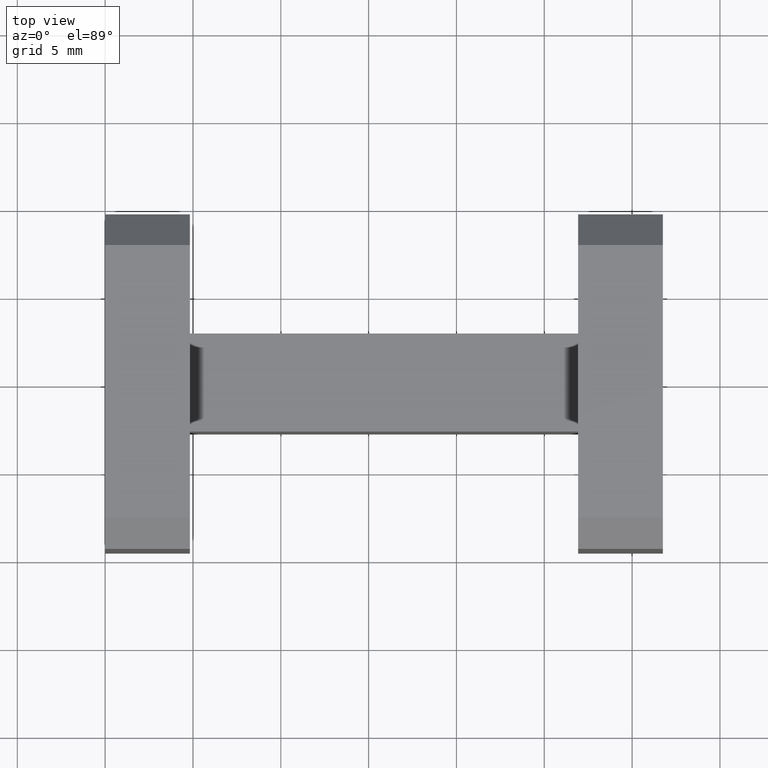
[diagram: clean part render]
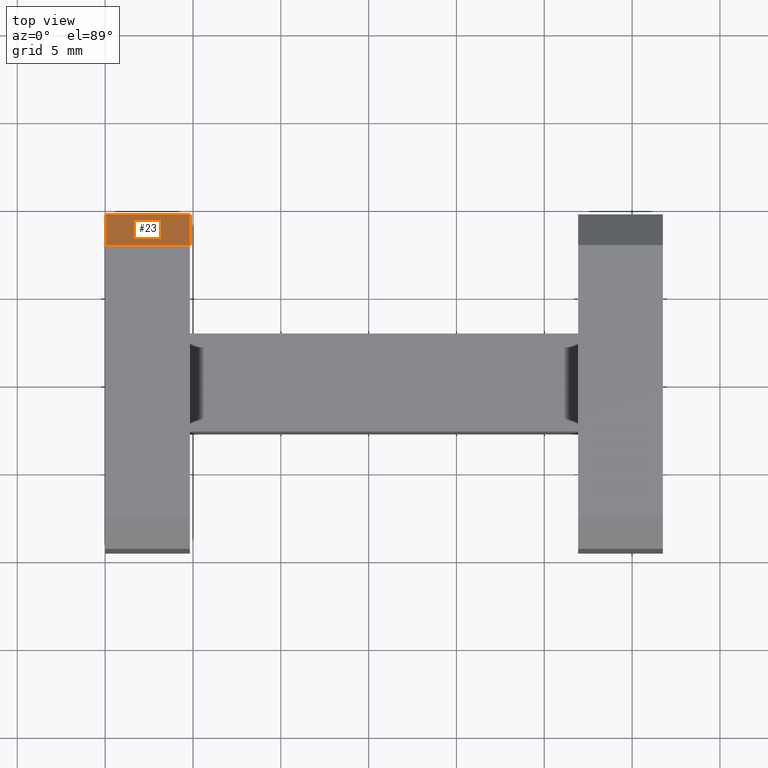
[diagram: same view with one face highlighted and labeled with its STEP entity id]
A machine part, top view. The second image highlights one B-rep face of the part: STEP entity #23.
In plain terms, the highlighted planar face has unit normal (-0, -0.7071, -0.7071).
Its self-contained STEP definition (entity closure, byte-faithful):
#23 = ADVANCED_FACE ( 'NONE', ( #223 ), #1614, .F. ) ;
#38 = VERTEX_POINT ( 'NONE', #601 ) ;
#99 = CARTESIAN_POINT ( 'NONE',  ( 0.1899999999999999745, 0.3050000000000001044, 0.3750000000000000555 ) ) ;
#107 = VECTOR ( 'NONE', #479, 39.37007874015748143 ) ;
#201 = CARTESIAN_POINT ( 'NONE',  ( 0.1899999999999999745, 0.3750000000000000555, 0.3049999999999996603 ) ) ;
#223 = FACE_OUTER_BOUND ( 'NONE', #1252, .T. ) ;
#229 = ORIENTED_EDGE ( 'NONE', *, *, #1468, .F. ) ;
#276 = EDGE_CURVE ( 'NONE', #770, #1494, #1442, .T. ) ;
#304 = CARTESIAN_POINT ( 'NONE',  ( 0.000000000000000000, 0.3050000000000001044, 0.3750000000000000555 ) ) ;
#319 = EDGE_CURVE ( 'NONE', #507, #38, #1301, .T. ) ;
#402 = DIRECTION ( 'NONE',  ( -0.000000000000000000, -0.7071067811865469066, 0.7071067811865482389 ) ) ;
#479 = DIRECTION ( 'NONE',  ( 1.000000000000000000, 0.000000000000000000, 0.000000000000000000 ) ) ;
#495 = DIRECTION ( 'NONE',  ( -0.000000000000000000, -0.7071067811865482389, -0.7071067811865469066 ) ) ;
#507 = VERTEX_POINT ( 'NONE', #201 ) ;
#531 = VECTOR ( 'NONE', #803, 39.37007874015748143 ) ;
#601 = CARTESIAN_POINT ( 'NONE',  ( 0.1899999999999999745, 0.3049999999999998268, 0.3750000000000000555 ) ) ;
#724 = DIRECTION ( 'NONE',  ( -1.000000000000000000, 0.000000000000000000, 0.000000000000000000 ) ) ;
#745 = ORIENTED_EDGE ( 'NONE', *, *, #1520, .F. ) ;
#770 = VERTEX_POINT ( 'NONE', #790 ) ;
#790 = CARTESIAN_POINT ( 'NONE',  ( 0.000000000000000000, 0.3049999999999998268, 0.3750000000000000555 ) ) ;
#803 = DIRECTION ( 'NONE',  ( -0.000000000000000000, 0.7071067811865469066, -0.7071067811865482389 ) ) ;
#857 = CARTESIAN_POINT ( 'NONE',  ( 0.1899999999999999745, 0.3750000000000000555, 0.3049999999999999378 ) ) ;
#999 = ORIENTED_EDGE ( 'NONE', *, *, #319, .F. ) ;
#1110 = LINE ( 'NONE', #857, #107 ) ;
#1117 = CARTESIAN_POINT ( 'NONE',  ( 0.1899999999999999745, 0.3050000000000001044, 0.3750000000000000555 ) ) ;
#1233 = VECTOR ( 'NONE', #1253, 39.37007874015748143 ) ;
#1252 = EDGE_LOOP ( 'NONE', ( #999, #229, #1312, #745 ) ) ;
#1253 = DIRECTION ( 'NONE',  ( -1.000000000000000000, 0.000000000000000000, 0.000000000000000000 ) ) ;
#1274 = CARTESIAN_POINT ( 'NONE',  ( 0.1899999999999999745, 0.3400000000000003575, 0.3399999999999997469 ) ) ;
#1301 = LINE ( 'NONE', #1274, #1339 ) ;
#1312 = ORIENTED_EDGE ( 'NONE', *, *, #276, .F. ) ;
#1339 = VECTOR ( 'NONE', #402, 39.37007874015748143 ) ;
#1370 = CARTESIAN_POINT ( 'NONE',  ( 0.000000000000000000, 0.3750000000000000555, 0.3049999999999996603 ) ) ;
#1437 = AXIS2_PLACEMENT_3D ( 'NONE', #99, #495, #724 ) ;
#1442 = LINE ( 'NONE', #304, #531 ) ;
#1468 = EDGE_CURVE ( 'NONE', #1494, #507, #1110, .T. ) ;
#1494 = VERTEX_POINT ( 'NONE', #1370 ) ;
#1520 = EDGE_CURVE ( 'NONE', #38, #770, #1526, .T. ) ;
#1526 = LINE ( 'NONE', #1117, #1233 ) ;
#1614 = PLANE ( 'NONE',  #1437 ) ;